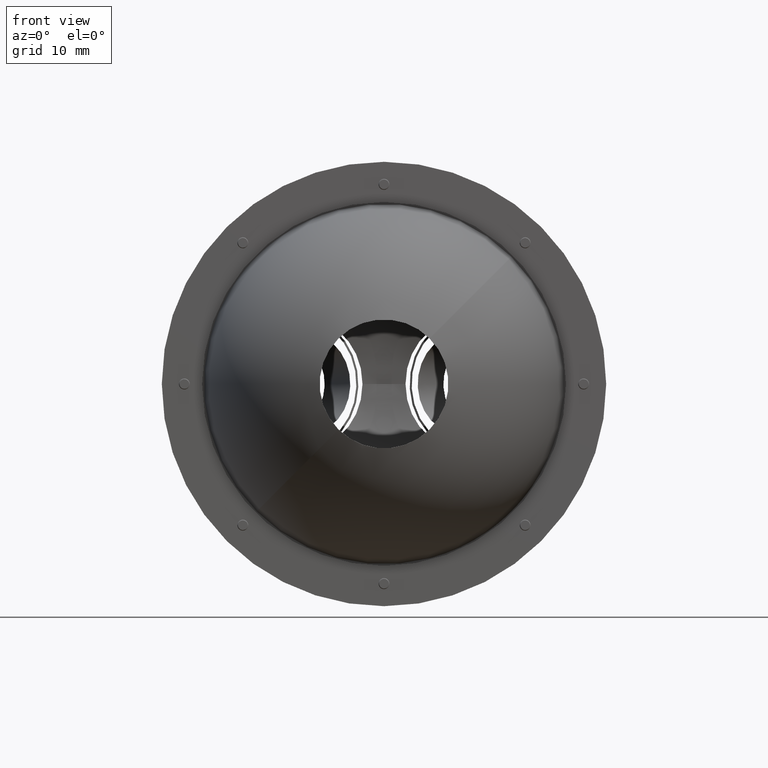
[diagram: clean part render]
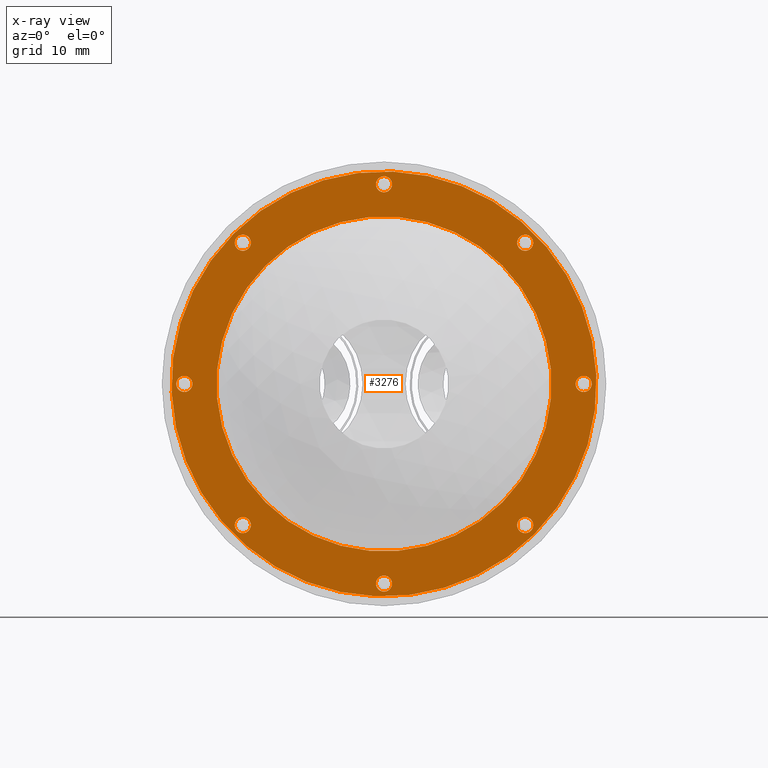
[diagram: x-ray — body ghosted, one internal face saturated and labeled with its STEP entity id]
A machine part, front view, then the same camera in x-ray: the body is ghosted and one INTERNAL B-rep face — a face not visible from any outside direction — is saturated and labeled: STEP entity #3276.
In plain terms, the highlighted planar face has unit normal (0, 1, 0).
Its self-contained STEP definition (entity closure, byte-faithful):
#36 = DIRECTION ( 'NONE',  ( -0.7071067811865585639, 0.000000000000000000, 0.7071067811865365815 ) ) ;
#46 = ORIENTED_EDGE ( 'NONE', *, *, #2789, .F. ) ;
#56 = VERTEX_POINT ( 'NONE', #6388 ) ;
#72 = FACE_BOUND ( 'NONE', #2901, .T. ) ;
#211 = VERTEX_POINT ( 'NONE', #1031 ) ;
#290 = CARTESIAN_POINT ( 'NONE',  ( -21.63209757390854904, -18.31086588718419605, -0.8838834764833871649 ) ) ;
#295 = ORIENTED_EDGE ( 'NONE', *, *, #5134, .F. ) ;
#330 = CARTESIAN_POINT ( 'NONE',  ( 29.52044568990838513, -18.31086588718419605, -21.03642674029956083 ) ) ;
#404 = CIRCLE ( 'NONE', #1503, 1.250000000000000444 ) ;
#416 = ORIENTED_EDGE ( 'NONE', *, *, #1520, .F. ) ;
#421 = EDGE_CURVE ( 'NONE', #2546, #3576, #1881, .T. ) ;
#434 = CARTESIAN_POINT ( 'NONE',  ( 30.40432916639097627, -18.31086588718419605, 21.92031021678335279 ) ) ;
#448 = DIRECTION ( 'NONE',  ( -0.7071067811865586750, 0.000000000000000000, 0.7071067811865364705 ) ) ;
#450 = CARTESIAN_POINT ( 'NONE',  ( -9.900757361241653953, -18.31086588718419605, -18.38477631085054398 ) ) ;
#535 = ORIENTED_EDGE ( 'NONE', *, *, #2126, .F. ) ;
#597 = DIRECTION ( 'NONE',  ( -0.7071067811865596742, 0.000000000000000000, 0.7071067811865353603 ) ) ;
#707 = DIRECTION ( 'NONE',  ( 0.000000000000000000, 1.000000000000000000, 0.000000000000000000 ) ) ;
#731 = CARTESIAN_POINT ( 'NONE',  ( -22.51598105039174769, -18.31086588718419605, -2.168404344971008868E-13 ) ) ;
#825 = CIRCLE ( 'NONE', #5611, 1.249999999999997780 ) ;
#889 = ORIENTED_EDGE ( 'NONE', *, *, #2166, .F. ) ;
#957 = EDGE_CURVE ( 'NONE', #56, #5071, #4304, .T. ) ;
#970 = ORIENTED_EDGE ( 'NONE', *, *, #6827, .F. ) ;
#990 = EDGE_LOOP ( 'NONE', ( #2035, #1006 ) ) ;
#1000 = AXIS2_PLACEMENT_3D ( 'NONE', #6822, #5125, #448 ) ;
#1002 = DIRECTION ( 'NONE',  ( -0.7071067811865596742, 0.000000000000000000, 0.7071067811865353603 ) ) ;
#1006 = ORIENTED_EDGE ( 'NONE', *, *, #4854, .F. ) ;
#1031 = CARTESIAN_POINT ( 'NONE',  ( 7.600135473125425811, -18.31086588718419605, -30.11611652351689017 ) ) ;
#1037 = DIRECTION ( 'NONE',  ( 0.000000000000000000, 1.000000000000000000, 0.000000000000000000 ) ) ;
#1044 = VERTEX_POINT ( 'NONE', #4710 ) ;
#1050 = DIRECTION ( 'NONE',  ( 0.000000000000000000, 1.000000000000000000, 0.000000000000000000 ) ) ;
#1073 = DIRECTION ( 'NONE',  ( -0.7071067811865590080, 0.000000000000000000, 0.7071067811865361374 ) ) ;
#1148 = EDGE_CURVE ( 'NONE', #7106, #6649, #4542, .T. ) ;
#1176 = CIRCLE ( 'NONE', #5483, 1.250000000000000444 ) ;
#1228 = AXIS2_PLACEMENT_3D ( 'NONE', #731, #7190, #1915 ) ;
#1252 = CARTESIAN_POINT ( 'NONE',  ( 29.52044568990777407, -18.31086588718419605, 22.80419369326652657 ) ) ;
#1256 = PLANE ( 'NONE',  #1602 ) ;
#1272 = CARTESIAN_POINT ( 'NONE',  ( 38.60013547312518511, -18.31086588718419605, 0.8838834764835988844 ) ) ;
#1293 = FACE_OUTER_BOUND ( 'NONE', #6080, .T. ) ;
#1328 = AXIS2_PLACEMENT_3D ( 'NONE', #3943, #1037, #1002 ) ;
#1501 = DIRECTION ( 'NONE',  ( 0.000000000000000000, 1.000000000000000000, 0.000000000000000000 ) ) ;
#1503 = AXIS2_PLACEMENT_3D ( 'NONE', #5969, #707, #4268 ) ;
#1520 = EDGE_CURVE ( 'NONE', #6649, #7106, #5537, .T. ) ;
#1550 = CIRCLE ( 'NONE', #3379, 1.249999999999997335 ) ;
#1576 = ORIENTED_EDGE ( 'NONE', *, *, #3543, .F. ) ;
#1599 = AXIS2_PLACEMENT_3D ( 'NONE', #434, #2765, #5148 ) ;
#1602 = AXIS2_PLACEMENT_3D ( 'NONE', #7141, #5407, #7220 ) ;
#1607 = CIRCLE ( 'NONE', #6514, 1.250000000000000444 ) ;
#1881 = CIRCLE ( 'NONE', #2873, 1.249999999999997780 ) ;
#1887 = VERTEX_POINT ( 'NONE', #2678 ) ;
#1906 = CIRCLE ( 'NONE', #6950, 1.250000000000000444 ) ;
#1915 = DIRECTION ( 'NONE',  ( -0.7071067811865587860, 0.000000000000000000, 0.7071067811865362485 ) ) ;
#1925 = CARTESIAN_POINT ( 'NONE',  ( -14.32017474365772003, -18.31086588718419605, -21.03642674030004045 ) ) ;
#1946 = CIRCLE ( 'NONE', #7233, 26.00000000000004619 ) ;
#2035 = ORIENTED_EDGE ( 'NONE', *, *, #421, .F. ) ;
#2070 = CARTESIAN_POINT ( 'NONE',  ( 39.48401894960838376, -18.31086588718419605, 4.284766985662713523E-13 ) ) ;
#2126 = EDGE_CURVE ( 'NONE', #1044, #3693, #404, .T. ) ;
#2141 = DIRECTION ( 'NONE',  ( 0.000000000000000000, 1.000000000000000000, 0.000000000000000000 ) ) ;
#2166 = EDGE_CURVE ( 'NONE', #211, #4538, #3820, .T. ) ;
#2213 = CARTESIAN_POINT ( 'NONE',  ( 30.40432916639158378, -18.31086588718419605, -21.92031021678273106 ) ) ;
#2255 = DIRECTION ( 'NONE',  ( 0.000000000000000000, 1.000000000000000000, 0.000000000000000000 ) ) ;
#2278 = DIRECTION ( 'NONE',  ( -0.7071067811865585639, 0.000000000000000000, 0.7071067811865365815 ) ) ;
#2434 = CARTESIAN_POINT ( 'NONE',  ( 40.36790242609157531, -18.31086588718419605, -0.8838834764827417922 ) ) ;
#2464 = DIRECTION ( 'NONE',  ( -0.7071067811865586750, 0.000000000000000000, 0.7071067811865364705 ) ) ;
#2476 = EDGE_LOOP ( 'NONE', ( #295, #4008 ) ) ;
#2494 = FACE_BOUND ( 'NONE', #2476, .T. ) ;
#2546 = VERTEX_POINT ( 'NONE', #1272 ) ;
#2593 = DIRECTION ( 'NONE',  ( 0.000000000000000000, 1.000000000000000000, 0.000000000000000000 ) ) ;
#2663 = DIRECTION ( 'NONE',  ( -0.7071067811865585639, 0.000000000000000000, 0.7071067811865364705 ) ) ;
#2678 = CARTESIAN_POINT ( 'NONE',  ( 31.28821264287478243, -18.31086588718419605, -22.80419369326590484 ) ) ;
#2765 = DIRECTION ( 'NONE',  ( 0.000000000000000000, 1.000000000000000000, 0.000000000000000000 ) ) ;
#2789 = EDGE_CURVE ( 'NONE', #3693, #1044, #1607, .T. ) ;
#2813 = DIRECTION ( 'NONE',  ( 0.000000000000000000, 1.000000000000000000, 0.000000000000000000 ) ) ;
#2852 = CARTESIAN_POINT ( 'NONE',  ( -13.43629126717452138, -18.31086588718419605, -21.92031021678321068 ) ) ;
#2873 = AXIS2_PLACEMENT_3D ( 'NONE', #3445, #2945, #5291 ) ;
#2895 = CIRCLE ( 'NONE', #4375, 33.00000000000005684 ) ;
#2901 = EDGE_LOOP ( 'NONE', ( #1576, #3765 ) ) ;
#2922 = CARTESIAN_POINT ( 'NONE',  ( 7.600135473124994157, -18.31086588718419605, 31.88388347648322352 ) ) ;
#2945 = DIRECTION ( 'NONE',  ( 0.000000000000000000, 1.000000000000000000, 0.000000000000000000 ) ) ;
#2970 = DIRECTION ( 'NONE',  ( 0.000000000000000000, 1.000000000000000000, 0.000000000000000000 ) ) ;
#3004 = CARTESIAN_POINT ( 'NONE',  ( 31.81854272876478973, -18.31086588718419605, -23.33452377915574161 ) ) ;
#3062 = VERTEX_POINT ( 'NONE', #5538 ) ;
#3136 = FACE_BOUND ( 'NONE', #7366, .T. ) ;
#3203 = DIRECTION ( 'NONE',  ( 0.000000000000000000, 1.000000000000000000, 0.000000000000000000 ) ) ;
#3214 = CARTESIAN_POINT ( 'NONE',  ( -14.32017474365801846, -18.31086588718419605, 22.80419369326607182 ) ) ;
#3276 = ADVANCED_FACE ( 'NONE', ( #2494, #72, #4162, #3666, #4750, #5367, #7099, #3136, #6521, #1293 ), #1256, .T. ) ;
#3375 = CARTESIAN_POINT ( 'NONE',  ( 8.484018949608625348, -18.31086588718419605, -31.00000000000006395 ) ) ;
#3379 = AXIS2_PLACEMENT_3D ( 'NONE', #7411, #2141, #597 ) ;
#3417 = DIRECTION ( 'NONE',  ( 0.000000000000000000, 1.000000000000000000, 0.000000000000000000 ) ) ;
#3445 = CARTESIAN_POINT ( 'NONE',  ( 39.48401894960838376, -18.31086588718419605, 4.284766985662713523E-13 ) ) ;
#3450 = VERTEX_POINT ( 'NONE', #450 ) ;
#3454 = CARTESIAN_POINT ( 'NONE',  ( 9.367902426091823997, -18.31086588718419605, -31.88388347648323773 ) ) ;
#3468 = CARTESIAN_POINT ( 'NONE',  ( -13.43629126717481981, -18.31086588718419605, 21.92031021678290159 ) ) ;
#3508 = AXIS2_PLACEMENT_3D ( 'NONE', #3808, #3203, #5511 ) ;
#3543 = EDGE_CURVE ( 'NONE', #5071, #56, #1176, .T. ) ;
#3576 = VERTEX_POINT ( 'NONE', #2434 ) ;
#3579 = ORIENTED_EDGE ( 'NONE', *, *, #7266, .F. ) ;
#3666 = FACE_BOUND ( 'NONE', #5915, .T. ) ;
#3693 = VERTEX_POINT ( 'NONE', #1925 ) ;
#3765 = ORIENTED_EDGE ( 'NONE', *, *, #957, .F. ) ;
#3808 = CARTESIAN_POINT ( 'NONE',  ( 8.484018949608307381, -18.31086588718419605, 0.000000000000000000 ) ) ;
#3820 = CIRCLE ( 'NONE', #6525, 1.250000000000001110 ) ;
#3889 = AXIS2_PLACEMENT_3D ( 'NONE', #3904, #3417, #36 ) ;
#3904 = CARTESIAN_POINT ( 'NONE',  ( 8.484018949608307381, -18.31086588718419605, 0.000000000000000000 ) ) ;
#3923 = AXIS2_PLACEMENT_3D ( 'NONE', #5400, #6475, #5324 ) ;
#3943 = CARTESIAN_POINT ( 'NONE',  ( 8.484018949608191917, -18.31086588718419605, 31.00000000000005684 ) ) ;
#3983 = ORIENTED_EDGE ( 'NONE', *, *, #5508, .T. ) ;
#4008 = ORIENTED_EDGE ( 'NONE', *, *, #4567, .F. ) ;
#4071 = DIRECTION ( 'NONE',  ( 0.000000000000000000, 1.000000000000000000, 0.000000000000000000 ) ) ;
#4077 = DIRECTION ( 'NONE',  ( -0.7071067811865586750, 0.000000000000000000, 0.7071067811865364705 ) ) ;
#4100 = CARTESIAN_POINT ( 'NONE',  ( 30.40432916639097627, -18.31086588718419605, 21.92031021678335279 ) ) ;
#4110 = CARTESIAN_POINT ( 'NONE',  ( 30.40432916639158378, -18.31086588718419605, -21.92031021678273106 ) ) ;
#4132 = VERTEX_POINT ( 'NONE', #2922 ) ;
#4162 = FACE_BOUND ( 'NONE', #4465, .T. ) ;
#4176 = DIRECTION ( 'NONE',  ( 0.000000000000000000, 1.000000000000000000, 0.000000000000000000 ) ) ;
#4224 = CARTESIAN_POINT ( 'NONE',  ( -23.39986452687494634, -18.31086588718419605, 0.8838834764829536228 ) ) ;
#4268 = DIRECTION ( 'NONE',  ( -0.7071067811865586750, 0.000000000000000000, 0.7071067811865364705 ) ) ;
#4304 = CIRCLE ( 'NONE', #1000, 1.250000000000000444 ) ;
#4307 = VERTEX_POINT ( 'NONE', #4728 ) ;
#4309 = CARTESIAN_POINT ( 'NONE',  ( 8.484018949608307381, -18.31086588718419605, 0.000000000000000000 ) ) ;
#4375 = AXIS2_PLACEMENT_3D ( 'NONE', #4309, #2593, #2663 ) ;
#4380 = EDGE_LOOP ( 'NONE', ( #4639, #970 ) ) ;
#4403 = AXIS2_PLACEMENT_3D ( 'NONE', #3375, #6338, #1073 ) ;
#4465 = EDGE_LOOP ( 'NONE', ( #416, #6568 ) ) ;
#4484 = CIRCLE ( 'NONE', #3508, 33.00000000000005684 ) ;
#4538 = VERTEX_POINT ( 'NONE', #3454 ) ;
#4542 = CIRCLE ( 'NONE', #3923, 1.250000000000000222 ) ;
#4567 = EDGE_CURVE ( 'NONE', #3062, #4132, #4638, .T. ) ;
#4638 = CIRCLE ( 'NONE', #1328, 1.249999999999997335 ) ;
#4639 = ORIENTED_EDGE ( 'NONE', *, *, #6048, .F. ) ;
#4702 = DIRECTION ( 'NONE',  ( -0.7071067811865586750, 0.000000000000000000, 0.7071067811865364705 ) ) ;
#4710 = CARTESIAN_POINT ( 'NONE',  ( -12.55240779069132273, -18.31086588718419605, -22.80419369326638090 ) ) ;
#4728 = CARTESIAN_POINT ( 'NONE',  ( 26.86879526045827404, -18.31086588718419605, 18.38477631085053687 ) ) ;
#4750 = FACE_BOUND ( 'NONE', #5688, .T. ) ;
#4854 = EDGE_CURVE ( 'NONE', #3576, #2546, #825, .T. ) ;
#5071 = VERTEX_POINT ( 'NONE', #3214 ) ;
#5081 = VERTEX_POINT ( 'NONE', #5561 ) ;
#5125 = DIRECTION ( 'NONE',  ( 0.000000000000000000, 1.000000000000000000, 0.000000000000000000 ) ) ;
#5134 = EDGE_CURVE ( 'NONE', #4132, #3062, #1550, .T. ) ;
#5139 = EDGE_CURVE ( 'NONE', #1887, #5378, #1906, .T. ) ;
#5148 = DIRECTION ( 'NONE',  ( -0.7071067811865586750, 0.000000000000000000, 0.7071067811865364705 ) ) ;
#5151 = ORIENTED_EDGE ( 'NONE', *, *, #5381, .T. ) ;
#5248 = VERTEX_POINT ( 'NONE', #3004 ) ;
#5269 = CARTESIAN_POINT ( 'NONE',  ( 8.484018949608307381, -18.31086588718419605, 0.000000000000000000 ) ) ;
#5291 = DIRECTION ( 'NONE',  ( -0.7071067811865573427, 0.000000000000000000, 0.7071067811865375807 ) ) ;
#5301 = DIRECTION ( 'NONE',  ( -0.7071067811865586750, 0.000000000000000000, 0.7071067811865364705 ) ) ;
#5324 = DIRECTION ( 'NONE',  ( -0.7071067811865587860, 0.000000000000000000, 0.7071067811865362485 ) ) ;
#5367 = FACE_BOUND ( 'NONE', #6357, .T. ) ;
#5378 = VERTEX_POINT ( 'NONE', #330 ) ;
#5381 = EDGE_CURVE ( 'NONE', #5248, #5081, #2895, .T. ) ;
#5400 = CARTESIAN_POINT ( 'NONE',  ( -22.51598105039174769, -18.31086588718419605, -2.168404344971008868E-13 ) ) ;
#5407 = DIRECTION ( 'NONE',  ( 0.000000000000000000, 1.000000000000000000, 0.000000000000000000 ) ) ;
#5483 = AXIS2_PLACEMENT_3D ( 'NONE', #3468, #2970, #6539 ) ;
#5508 = EDGE_CURVE ( 'NONE', #5081, #5248, #4484, .T. ) ;
#5511 = DIRECTION ( 'NONE',  ( -0.7071067811865585639, 0.000000000000000000, 0.7071067811865364705 ) ) ;
#5535 = DIRECTION ( 'NONE',  ( -0.7071067811865573427, 0.000000000000000000, 0.7071067811865375807 ) ) ;
#5537 = CIRCLE ( 'NONE', #1228, 1.250000000000000222 ) ;
#5538 = CARTESIAN_POINT ( 'NONE',  ( 9.367902426091390566, -18.31086588718419605, 30.11611652351688306 ) ) ;
#5561 = CARTESIAN_POINT ( 'NONE',  ( -14.85050482954816609, -18.31086588718419605, 23.33452377915574516 ) ) ;
#5611 = AXIS2_PLACEMENT_3D ( 'NONE', #2070, #1501, #5535 ) ;
#5625 = CIRCLE ( 'NONE', #3889, 26.00000000000004619 ) ;
#5633 = DIRECTION ( 'NONE',  ( -0.7071067811865590080, 0.000000000000000000, 0.7071067811865361374 ) ) ;
#5688 = EDGE_LOOP ( 'NONE', ( #889, #6382 ) ) ;
#5703 = CARTESIAN_POINT ( 'NONE',  ( 8.484018949608625348, -18.31086588718419605, -31.00000000000006395 ) ) ;
#5798 = EDGE_CURVE ( 'NONE', #6160, #7360, #7087, .T. ) ;
#5911 = CARTESIAN_POINT ( 'NONE',  ( 31.28821264287417492, -18.31086588718419605, 21.03642674030017901 ) ) ;
#5915 = EDGE_LOOP ( 'NONE', ( #46, #535 ) ) ;
#5969 = CARTESIAN_POINT ( 'NONE',  ( -13.43629126717452138, -18.31086588718419605, -21.92031021678321068 ) ) ;
#5984 = ORIENTED_EDGE ( 'NONE', *, *, #5798, .F. ) ;
#6048 = EDGE_CURVE ( 'NONE', #4307, #3450, #5625, .T. ) ;
#6080 = EDGE_LOOP ( 'NONE', ( #3983, #5151 ) ) ;
#6138 = CIRCLE ( 'NONE', #1599, 1.250000000000005329 ) ;
#6160 = VERTEX_POINT ( 'NONE', #1252 ) ;
#6199 = ORIENTED_EDGE ( 'NONE', *, *, #6417, .F. ) ;
#6338 = DIRECTION ( 'NONE',  ( 0.000000000000000000, 1.000000000000000000, 0.000000000000000000 ) ) ;
#6357 = EDGE_LOOP ( 'NONE', ( #6199, #6542 ) ) ;
#6365 = AXIS2_PLACEMENT_3D ( 'NONE', #4110, #2255, #4702 ) ;
#6374 = AXIS2_PLACEMENT_3D ( 'NONE', #4100, #4176, #2464 ) ;
#6382 = ORIENTED_EDGE ( 'NONE', *, *, #7343, .F. ) ;
#6388 = CARTESIAN_POINT ( 'NONE',  ( -12.55240779069162116, -18.31086588718419605, 21.03642674029973136 ) ) ;
#6417 = EDGE_CURVE ( 'NONE', #5378, #1887, #7093, .T. ) ;
#6475 = DIRECTION ( 'NONE',  ( 0.000000000000000000, 1.000000000000000000, 0.000000000000000000 ) ) ;
#6514 = AXIS2_PLACEMENT_3D ( 'NONE', #2852, #2813, #5301 ) ;
#6521 = FACE_BOUND ( 'NONE', #4380, .T. ) ;
#6525 = AXIS2_PLACEMENT_3D ( 'NONE', #5703, #1050, #5633 ) ;
#6539 = DIRECTION ( 'NONE',  ( -0.7071067811865586750, 0.000000000000000000, 0.7071067811865364705 ) ) ;
#6542 = ORIENTED_EDGE ( 'NONE', *, *, #5139, .F. ) ;
#6568 = ORIENTED_EDGE ( 'NONE', *, *, #1148, .F. ) ;
#6649 = VERTEX_POINT ( 'NONE', #4224 ) ;
#6822 = CARTESIAN_POINT ( 'NONE',  ( -13.43629126717481981, -18.31086588718419605, 21.92031021678290159 ) ) ;
#6827 = EDGE_CURVE ( 'NONE', #3450, #4307, #1946, .T. ) ;
#6950 = AXIS2_PLACEMENT_3D ( 'NONE', #2213, #7481, #4077 ) ;
#7087 = CIRCLE ( 'NONE', #6374, 1.250000000000005329 ) ;
#7093 = CIRCLE ( 'NONE', #6365, 1.250000000000000444 ) ;
#7099 = FACE_BOUND ( 'NONE', #990, .T. ) ;
#7106 = VERTEX_POINT ( 'NONE', #290 ) ;
#7109 = CIRCLE ( 'NONE', #4403, 1.250000000000001110 ) ;
#7141 = CARTESIAN_POINT ( 'NONE',  ( 8.484018949608307381, -18.31086588718419605, 0.000000000000000000 ) ) ;
#7190 = DIRECTION ( 'NONE',  ( 0.000000000000000000, 1.000000000000000000, 0.000000000000000000 ) ) ;
#7220 = DIRECTION ( 'NONE',  ( -0.7071067811865586750, 0.000000000000000000, 0.7071067811865364705 ) ) ;
#7233 = AXIS2_PLACEMENT_3D ( 'NONE', #5269, #4071, #2278 ) ;
#7266 = EDGE_CURVE ( 'NONE', #7360, #6160, #6138, .T. ) ;
#7343 = EDGE_CURVE ( 'NONE', #4538, #211, #7109, .T. ) ;
#7360 = VERTEX_POINT ( 'NONE', #5911 ) ;
#7366 = EDGE_LOOP ( 'NONE', ( #5984, #3579 ) ) ;
#7411 = CARTESIAN_POINT ( 'NONE',  ( 8.484018949608191917, -18.31086588718419605, 31.00000000000005684 ) ) ;
#7481 = DIRECTION ( 'NONE',  ( 0.000000000000000000, 1.000000000000000000, 0.000000000000000000 ) ) ;